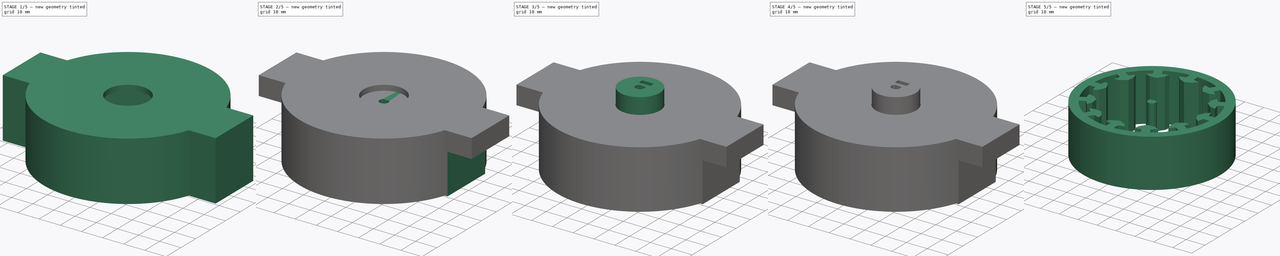
[diagram: build sequence overview — one tinted view per stage of 5, left to right]
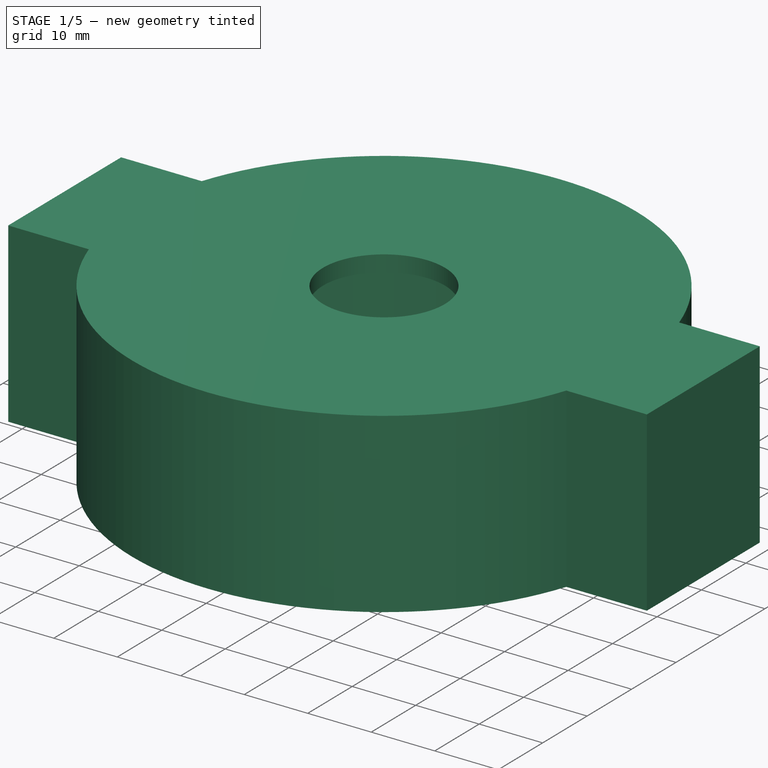
[diagram: stage 1 of 5 — iso view after this stage's code; geometry added in this stage tinted green]
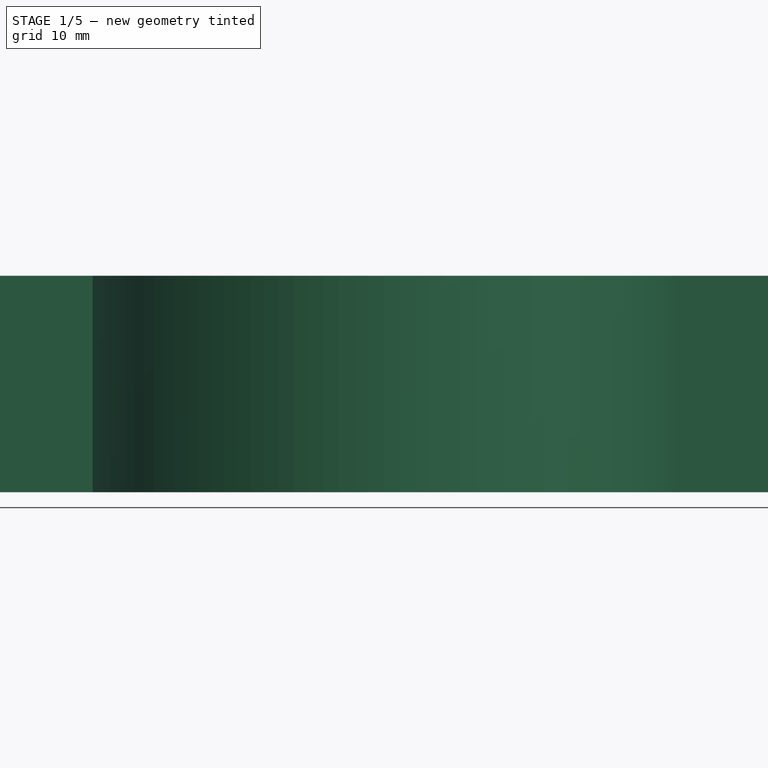
[diagram: stage 1 of 5 — front view after this stage's code; geometry added in this stage tinted green]
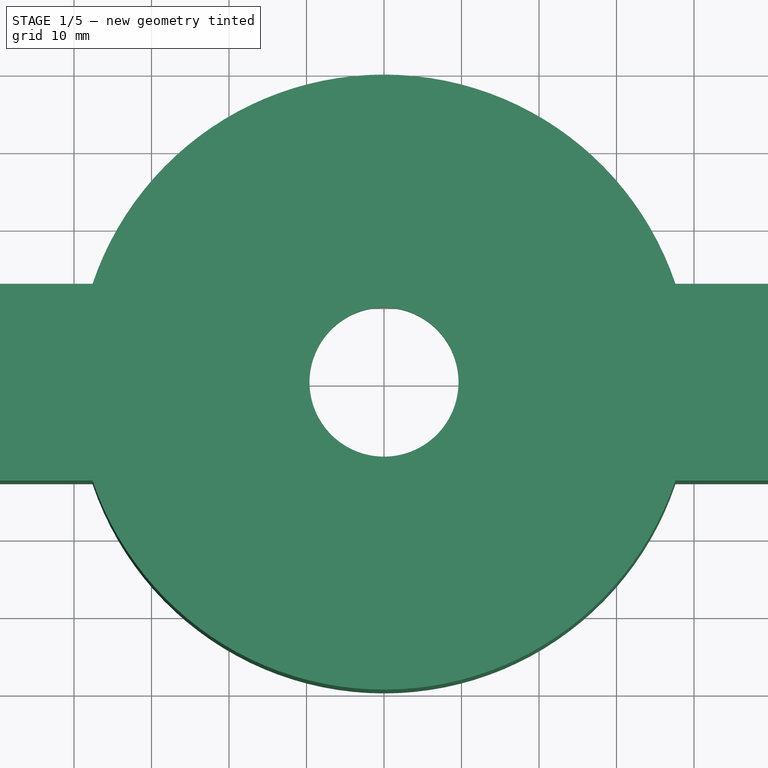
[diagram: stage 1 of 5 — top view after this stage's code; geometry added in this stage tinted green]
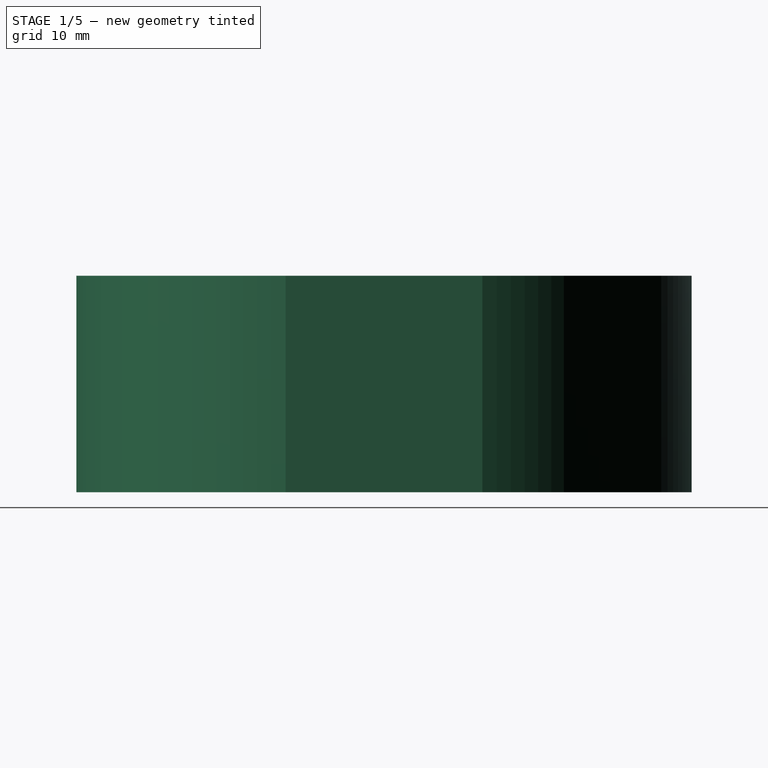
[diagram: stage 1 of 5 — right view after this stage's code; geometry added in this stage tinted green]
FCSTD DOCUMENT  (FreeCAD 2024.2R37191 (Git))
Label: wheel_hub_casting
License: All rights reserved
LicenseURL: http://en.wikipedia.org/wiki/All_rights_reserved
objects: Sketcher::SketchObject×10, PartDesign::Pocket×6, PartDesign::Pad×4, PartDesign::Body×2, Part::FeaturePython×2, PartDesign::PolarPattern×1, PartDesign::Plane×1, Part::Cylinder×1, Part::MultiFuse×1, Part::Cut×1
note: 39 computed .brp shape members not serialized (recipe doc carries the construction recipe); baked Part::Feature solids carry a one-line shape summary decoded from their .brp

FEATURE [Sketcher::SketchObject] Sketch005
  AttachmentSupport = -> [XY_Plane001]
  FullyConstrained = true
  MapMode = 5
  sketch-geometry (8):
    g0: ArcOfCircle CenterX=0 CenterY=0 CenterZ=0 NormalX=0 NormalY=0 NormalZ=1 AngleXU=0 Radius=39.6875 StartAngle=3.46732 EndAngle=5.95746
    g1: LineSegment StartX=37.6006 StartY=12.7 StartZ=0 EndX=50.3006 EndY=12.7 EndZ=0
    g2: LineSegment StartX=50.3006 StartY=12.7 StartZ=0 EndX=50.3006 EndY=-12.7 EndZ=0
    g3: LineSegment StartX=50.3006 StartY=-12.7 StartZ=0 EndX=37.6006 EndY=-12.7 EndZ=0
    g4: LineSegment StartX=-37.6006 StartY=12.7 StartZ=0 EndX=-50.3006 EndY=12.7 EndZ=0
    g5: LineSegment StartX=-50.3006 StartY=12.7 StartZ=0 EndX=-50.3006 EndY=-12.7 EndZ=0
    g6: LineSegment StartX=-50.3006 StartY=-12.7 StartZ=0 EndX=-37.6006 EndY=-12.7 EndZ=0
    g7: ArcOfCircle CenterX=0 CenterY=0 CenterZ=0 NormalX=0 NormalY=0 NormalZ=1 AngleXU=0 Radius=39.6875 StartAngle=0.325729 EndAngle=2.81586
  constraints (22):
    c: Coincident(g0,g-1)
    c: Diameter(g0) = 79.375
    c: Coincident(g1,g2)
    c: Coincident(g2,g3)
    c: Horizontal(g3)
    c: Horizontal(g1)
    c: Symmetric(g2,g1,g-1)
    c: Distance(g2,g2) = 25.4
    c: DistanceX(g1,g1) = 12.7
    c: Horizontal(g4)
    c: Coincident(g4,g5)
    c: Coincident(g5,g6)
    c: Horizontal(g6)
    c: Equal(g5,g2)
    c: Symmetric(g4,g5,g-1)
    c: Equal(g4,g1)
    c: Coincident(g7,g4)
    c: Coincident(g0,g6)
    c: Equal(g0,g7)
    c: Coincident(g0,g3)
    c: Coincident(g7,g1)
    c: Coincident(g0,g7)
FEATURE [PartDesign::Pad] Pad002  label="outside"
  Direction = (0,0,1)
  Length = 27.94
  Length2 = 10
  Profile = -> Sketch005
  ReferenceAxis = -> Sketch005 [N_Axis]
  Suppressed = false
  Type = 0
FEATURE [Sketcher::SketchObject] Sketch006
  AttachmentSupport = -> [Pad002]
  FullyConstrained = true
  MapMode = 5
  Placement = pos=(0,0,0) rot=(1,0,0;3.14159rad)
  sketch-geometry (1):
    g0: Circle CenterX=0 CenterY=0 CenterZ=0 NormalX=0 NormalY=0 NormalZ=1 AngleXU=0 Radius=36.195
  constraints (2):
    c: Coincident(g0,g-1)
    c: Diameter(g0) = 72.39
FEATURE [PartDesign::Pocket] Pocket003  label="inner-pocket"
  BaseFeature = -> Pad002
  Direction = (0,0,1)
  Length = 25.4
  Length2 = 5
  Profile = -> Sketch006
  ReferenceAxis = -> Sketch006 [N_Axis]
  Suppressed = false
  Type = 0
FEATURE [Sketcher::SketchObject] Sketch007
  AttachmentSupport = -> [Pocket003]
  FullyConstrained = true
  MapMode = 5
  Placement = pos=(0,0,25.4) rot=(1,0,0;3.14159rad)
  sketch-geometry (1):
    g0: Circle CenterX=0 CenterY=0 CenterZ=0 NormalX=0 NormalY=0 NormalZ=1 AngleXU=0 Radius=9.6139
  constraints (2):
    c: Coincident(g0,g-1)
    c: Diameter(g0) = 19.2278
FEATURE [PartDesign::Pocket] Pocket004  label="hub-pocket"
  BaseFeature = -> Pocket003
  Direction = (0,0,1)
  Length = 5
  Length2 = 5
  Profile = -> Sketch007
  ReferenceAxis = -> Sketch007 [N_Axis]
  Suppressed = false
  Type = 1
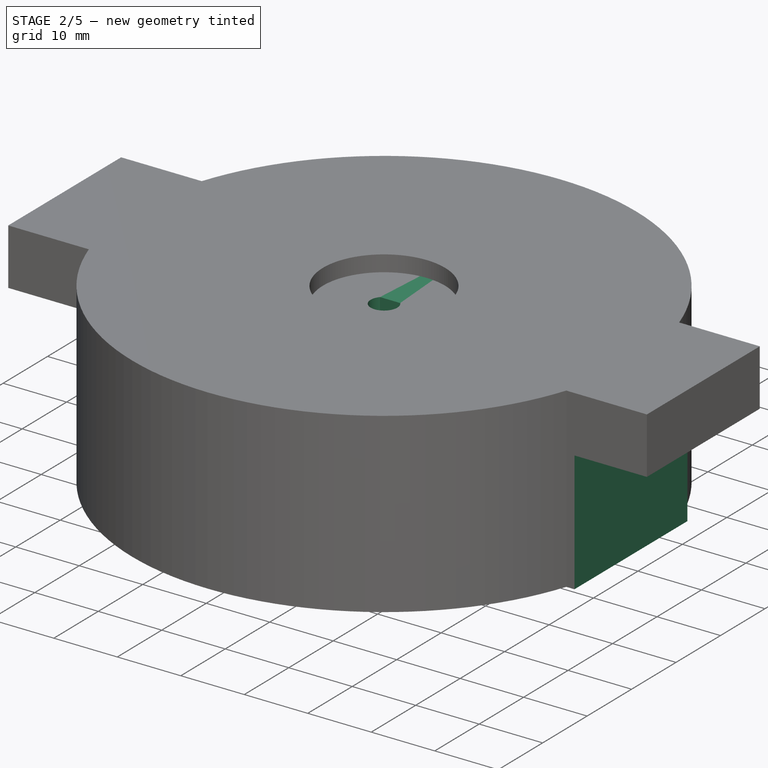
[diagram: stage 2 of 5 — iso view after this stage's code; geometry added in this stage tinted green]
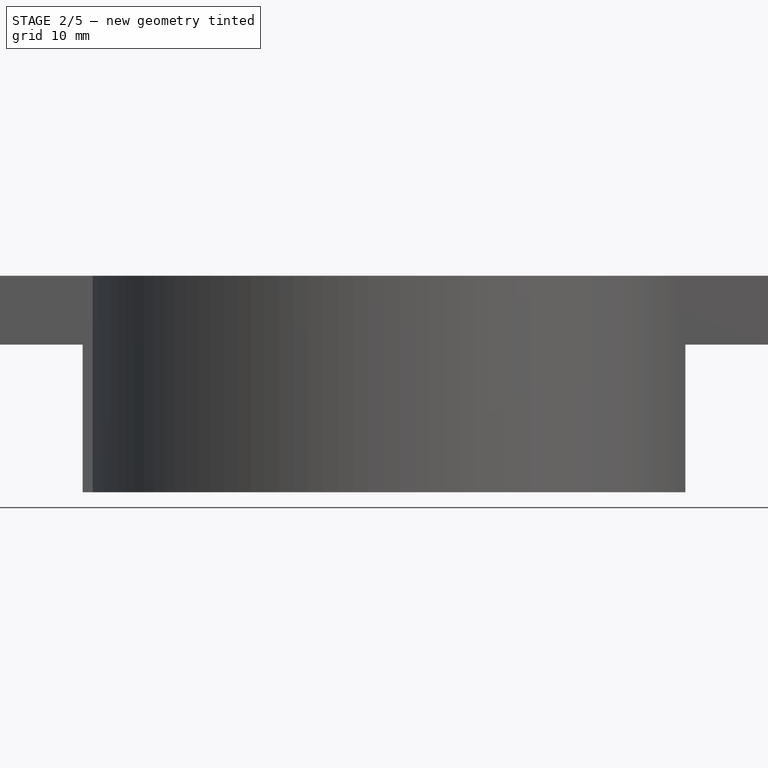
[diagram: stage 2 of 5 — front view after this stage's code; geometry added in this stage tinted green]
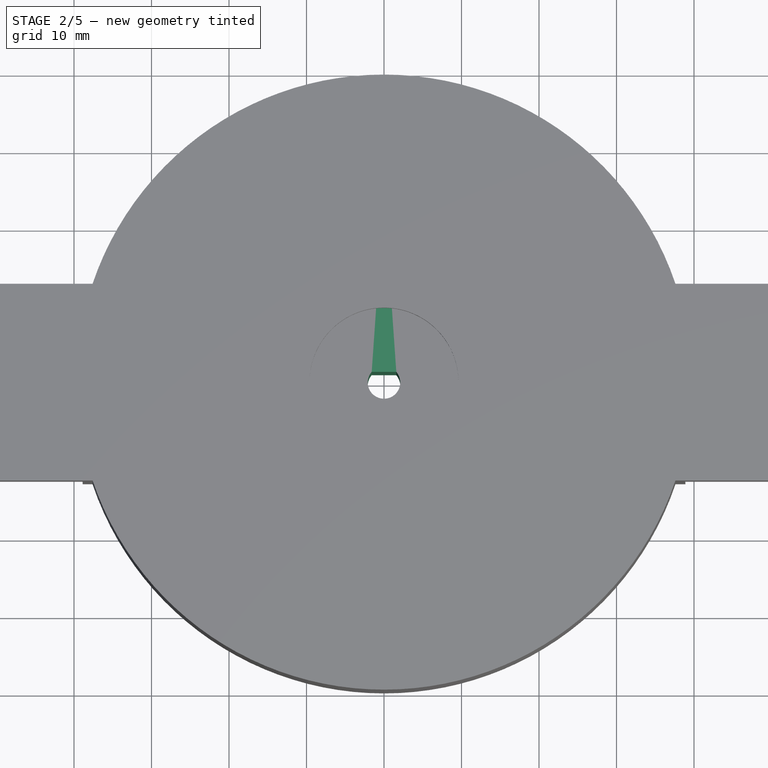
[diagram: stage 2 of 5 — top view after this stage's code; geometry added in this stage tinted green]
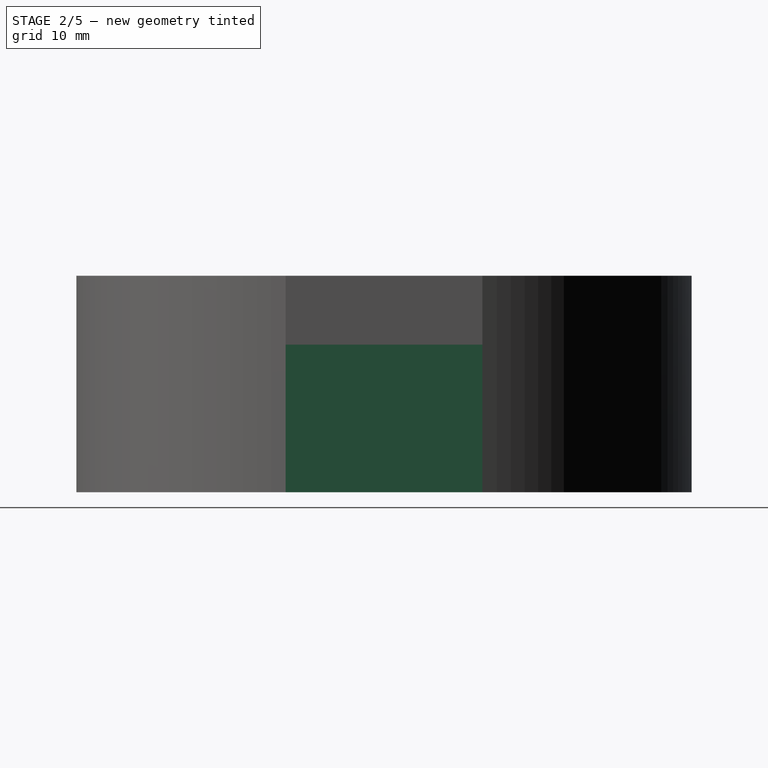
[diagram: stage 2 of 5 — right view after this stage's code; geometry added in this stage tinted green]
FEATURE [Sketcher::SketchObject] Sketch
  AttachmentSupport = -> [XY_Plane]
  FullyConstrained = true
  MapMode = 5
  sketch-geometry (4):
    g0: ArcOfCircle CenterX=0 CenterY=0 CenterZ=0 NormalX=0 NormalY=0 NormalZ=1 AngleXU=0 Radius=2.0955 StartAngle=2.43039 EndAngle=6.99439
    g1: LineSegment StartX=-1.5875 StartY=1.36783 StartZ=0 EndX=1.5875 EndY=1.36783 EndZ=0
    g2: Circle CenterX=0 CenterY=0 CenterZ=0 NormalX=0 NormalY=0 NormalZ=1 AngleXU=0 Radius=31.75
    g3: Circle CenterX=0 CenterY=0 CenterZ=0 NormalX=0 NormalY=0 NormalZ=1 AngleXU=0 Radius=38.1
  constraints (10):
    c: Coincident(g0,g-1)
    c: Horizontal(g1)
    c: Coincident(g0,g1)
    c: Coincident(g0,g1)
    c: Coincident(g2,g0)
    c: Diameter(g2) = 63.5
    c: Coincident(g3,g0)
    c: Diameter(g3) = 76.2
    c: DistanceX(g1,g1) = 3.175
    c: Diameter(g0) = 4.191
FEATURE [PartDesign::Pad] Pad
  Direction = (0,0,1)
  Length = 25.4
  Length2 = 10
  Profile = -> Sketch
  ReferenceAxis = -> Sketch [N_Axis]
  Suppressed = false
  Type = 0
FEATURE [Sketcher::SketchObject] Sketch001
  AttachmentSupport = -> [Pad]
  FullyConstrained = false
  MapMode = 5
  Placement = pos=(0,0,25.4) rot=(0,0,1;0rad)
  sketch-geometry (9):
    g0: LineSegment StartX=2.03594 StartY=32.8582 StartZ=0 EndX=2.03594 EndY=28.5127 EndZ=0
    g1: LineSegment StartX=2.03594 StartY=28.5127 StartZ=0 EndX=5.1287 EndY=27.768 EndZ=0
    g2: LineSegment StartX=5.1287 StartY=27.768 StartZ=0 EndX=3.33573 EndY=25.6223 EndZ=0
    g3: LineSegment StartX=3.33573 StartY=25.6223 StartZ=0 EndX=0 EndY=24.1679 EndZ=0
    g4: LineSegment StartX=0 StartY=24.1679 StartZ=0 EndX=-3.33573 EndY=25.6223 EndZ=0
    g5: LineSegment StartX=-3.33573 StartY=25.6223 StartZ=0 EndX=-5.1287 EndY=27.768 EndZ=0
    g6: LineSegment StartX=-5.1287 StartY=27.768 StartZ=0 EndX=-2.03594 EndY=28.5127 EndZ=0
    g7: LineSegment StartX=-2.03594 StartY=28.5127 StartZ=0 EndX=-2.03594 EndY=32.8582 EndZ=0
    g8: LineSegment StartX=2.03594 StartY=32.8582 StartZ=0 EndX=-2.03594 EndY=32.8582 EndZ=0
  constraints (19):
    c: Coincident(g0,g1)
    c: Coincident(g1,g2)
    c: Coincident(g2,g3)
    c: PointOnObject(g3,g-2)
    c: Coincident(g3,g4)
    c: Coincident(g4,g5)
    c: Coincident(g5,g6)
    c: Coincident(g6,g7)
    c: Equal(g7,g0)
    c: Equal(g6,g1)
    c: Equal(g2,g5)
    c: Equal(g4,g3)
    c: Horizontal(g5,g1)
    c: Horizontal(g4,g2)
    c: Coincident(g8,g0)
    c: Coincident(g8,g7)
    c: Horizontal(g8)
    c: Vertical(g0)
    c: Vertical(g7)
FEATURE [PartDesign::Pocket] Pocket
  BaseFeature = -> Pad
  Direction = (0,0,-1)
  Length = 5
  Length2 = 5
  Profile = -> Sketch001
  ReferenceAxis = -> Sketch001 [N_Axis]
  Suppressed = false
  Type = 1
FEATURE [Sketcher::SketchObject] Sketch009
  AttachmentSupport = -> [Pocket004]
  FullyConstrained = false
  MapMode = 5
  Placement = pos=(0,0,0) rot=(1,0,0;3.14159rad)
  sketch-geometry (8):
    g0: LineSegment StartX=38.8937 StartY=14.6889 StartZ=0 EndX=38.8937 EndY=-15.0479 EndZ=0
    g1: LineSegment StartX=38.8937 StartY=-15.0479 StartZ=0 EndX=56.7843 EndY=-15.0479 EndZ=0
    g2: LineSegment StartX=56.7843 StartY=-15.0479 StartZ=0 EndX=56.7843 EndY=14.6889 EndZ=0
    g3: LineSegment StartX=56.7843 StartY=14.6889 StartZ=0 EndX=38.8937 EndY=14.6889 EndZ=0
    g4: LineSegment StartX=-38.8937 StartY=14.6889 StartZ=0 EndX=-57.8787 EndY=14.6889 EndZ=0
    g5: LineSegment StartX=-57.8787 StartY=14.6889 StartZ=0 EndX=-57.8787 EndY=-16.6344 EndZ=0
    g6: LineSegment StartX=-57.8787 StartY=-16.6344 StartZ=0 EndX=-38.8937 EndY=-16.6344 EndZ=0
    g7: LineSegment StartX=-38.8937 StartY=-16.6344 StartZ=0 EndX=-38.8937 EndY=14.6889 EndZ=0
  constraints (18):
    c: Coincident(g0,g1)
    c: Coincident(g1,g2)
    c: Coincident(g2,g3)
    c: Coincident(g3,g0)
    c: Vertical(g0)
    c: Vertical(g2)
    c: Horizontal(g1)
    c: Horizontal(g3)
    c: Coincident(g4,g5)
    c: Coincident(g5,g6)
    c: Coincident(g6,g7)
    c: Coincident(g7,g4)
    c: Horizontal(g4)
    c: Horizontal(g6)
    c: Vertical(g5)
    c: Vertical(g7)
    c: DistanceX(g4,g0) = 77.7875
    c: Symmetric(g0,g4,g-2)
FEATURE [PartDesign::Pocket] Pocket005
  BaseFeature = -> Pocket004
  Direction = (0,0,1)
  Length = 19.05
  Length2 = 5
  Profile = -> Sketch009
  ReferenceAxis = -> Sketch009 [N_Axis]
  Refine = true
  Suppressed = false
  Type = 0
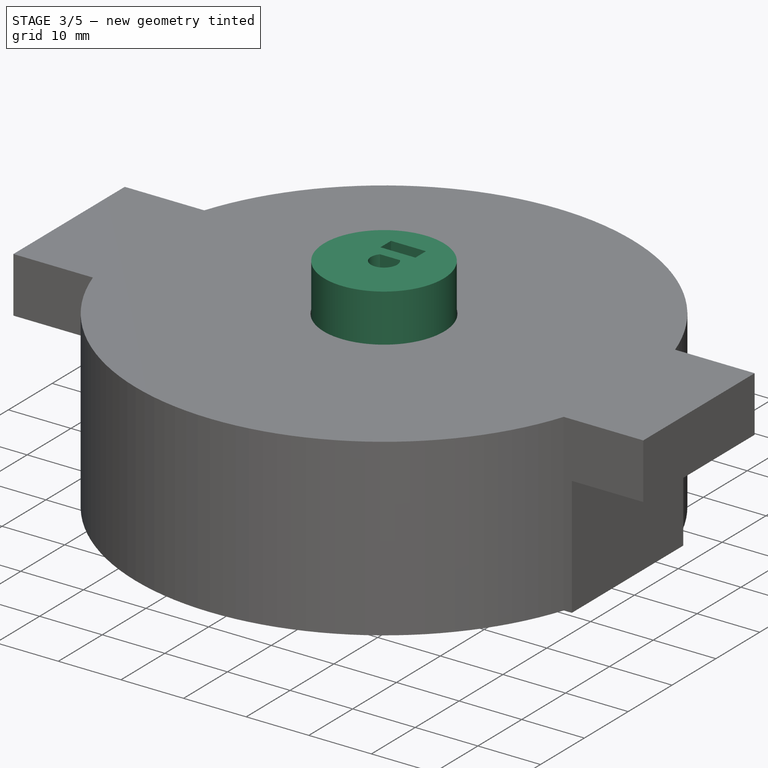
[diagram: stage 3 of 5 — iso view after this stage's code; geometry added in this stage tinted green]
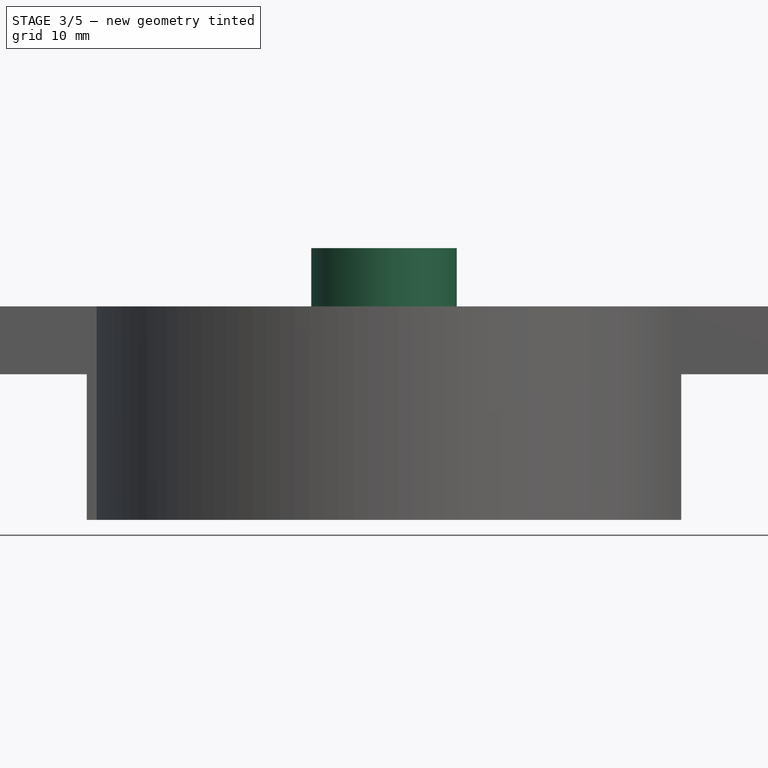
[diagram: stage 3 of 5 — front view after this stage's code; geometry added in this stage tinted green]
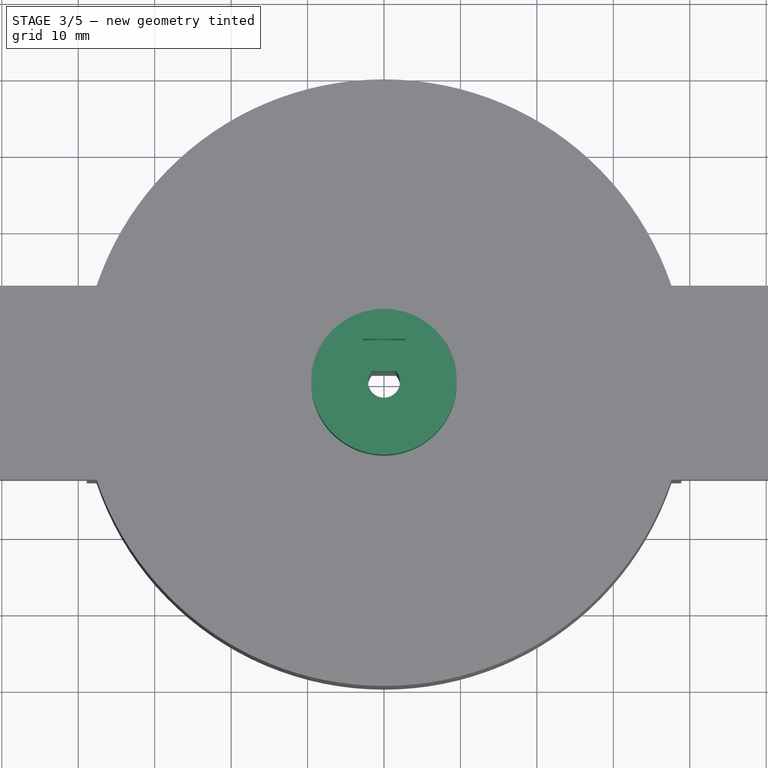
[diagram: stage 3 of 5 — top view after this stage's code; geometry added in this stage tinted green]
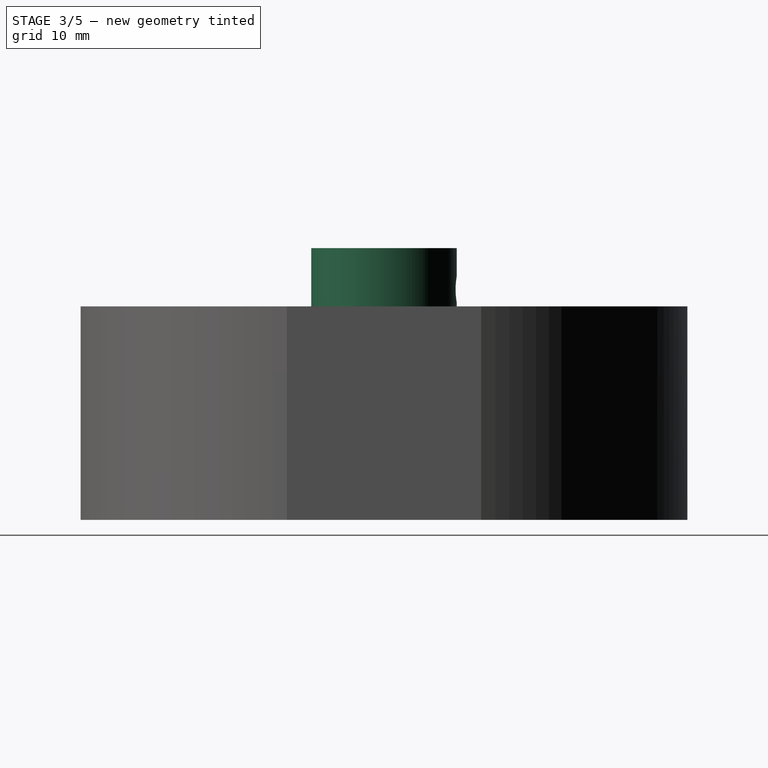
[diagram: stage 3 of 5 — right view after this stage's code; geometry added in this stage tinted green]
FEATURE [PartDesign::PolarPattern] PolarPattern
  Angle = 360
  Axis = -> Sketch001 [N_Axis]
  BaseFeature = -> Pocket
  Mode = 0
  Occurrences = 12
  Offset = 120
  Originals = -> [Pocket]
  Suppressed = false
FEATURE [Sketcher::SketchObject] Sketch002
  AttachmentSupport = -> [PolarPattern]
  ExternalGeometry = -> [PolarPattern]
  FullyConstrained = true
  MapMode = 5
  Placement = pos=(0,0,25.4) rot=(0,0,1;0rad)
  sketch-geometry (3):
    g0: Circle CenterX=0 CenterY=0 CenterZ=0 NormalX=0 NormalY=0 NormalZ=1 AngleXU=0 Radius=9.525
    g1: LineSegment StartX=-1.5875 StartY=1.36783 StartZ=0 EndX=1.5875 EndY=1.36783 EndZ=0
    g2: ArcOfCircle CenterX=0 CenterY=0 CenterZ=0 NormalX=0 NormalY=0 NormalZ=1 AngleXU=0 Radius=2.0955 StartAngle=2.43039 EndAngle=6.99439
  constraints (7):
    c: Coincident(g0,g-1)
    c: Coincident(g1,g-4)
    c: Coincident(g1,g-4)
    c: Coincident(g2,g0)
    c: Coincident(g2,g1)
    c: Coincident(g2,g1)
    c: Diameter(g0) = 19.05
FEATURE [PartDesign::Pad] Pad001  label="hub"
  BaseFeature = -> PolarPattern
  Direction = (0,0,1)
  Length = 10.16
  Length2 = 10
  Profile = -> Sketch002
  ReferenceAxis = -> Sketch002 [N_Axis]
  Suppressed = false
  Type = 0
FEATURE [PartDesign::Plane] DatumPlane
  AttachmentSupport = -> [Pad001]
  Length = 75.7591
  MapMode = 5
  Placement = pos=(0,1.36783,0) rot=(1,0,0;1.5708rad)
  ResizeMode = 0
  Width = 72.9497
FEATURE [Sketcher::SketchObject] Sketch003
  AttachmentSupport = -> [DatumPlane]
  FullyConstrained = true
  MapMode = 5
  Placement = pos=(0,1.36783,0) rot=(1,0,0;1.5708rad)
  sketch-geometry (1):
    g0: Circle CenterX=0 CenterY=30.1625 CenterZ=0 NormalX=0 NormalY=0 NormalZ=1 AngleXU=0 Radius=1.7399
  constraints (3):
    c: PointOnObject(g0,g-2)
    c: DistanceY(g-1,g0) = 30.1625
    c: Diameter(g0) = 3.4798
FEATURE [PartDesign::Pocket] Pocket001  label="setscrew-hole"
  BaseFeature = -> Pad001
  Direction = (0,1,-2e-16)
  Length = 11.43
  Length2 = 5
  Profile = -> Sketch003
  ReferenceAxis = -> Sketch003 [N_Axis]
  Suppressed = false
  Type = 0
FEATURE [Sketcher::SketchObject] Sketch004
  AttachmentSupport = -> [Pocket001]
  FullyConstrained = true
  MapMode = 5
  Placement = pos=(0,0,35.56) rot=(0,0,1;0rad)
  sketch-geometry (4):
    g0: LineSegment StartX=-2.794 StartY=5.588 StartZ=0 EndX=2.794 EndY=5.588 EndZ=0
    g1: LineSegment StartX=2.794 StartY=5.588 StartZ=0 EndX=2.794 EndY=3.175 EndZ=0
    g2: LineSegment StartX=2.794 StartY=3.175 StartZ=0 EndX=-2.794 EndY=3.175 EndZ=0
    g3: LineSegment StartX=-2.794 StartY=3.175 StartZ=0 EndX=-2.794 EndY=5.588 EndZ=0
  constraints (11):
    c: Coincident(g0,g1)
    c: Coincident(g1,g2)
    c: Coincident(g2,g3)
    c: Coincident(g3,g0)
    c: Horizontal(g2)
    c: Vertical(g1)
    c: Vertical(g3)
    c: DistanceX(g0,g0) = 5.588
    c: DistanceY(g1,g1) = 2.413
    c: Symmetric(g0,g0,g-2)
    c: DistanceY(g-1,g1) = 3.175
FEATURE [PartDesign::Pocket] Pocket002  label="recess-nut"
  BaseFeature = -> Pocket001
  Direction = (0,0,-1)
  Length = 9.525
  Length2 = 5
  Profile = -> Sketch004
  ReferenceAxis = -> Sketch004 [N_Axis]
  Suppressed = false
  Type = 0
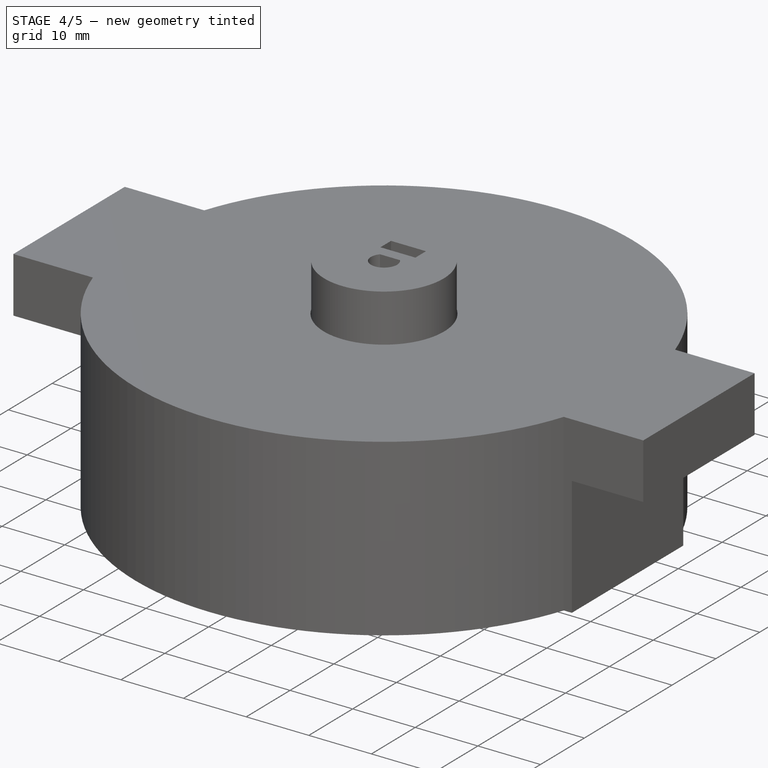
[diagram: stage 4 of 5 — iso view after this stage's code; geometry added in this stage tinted green]
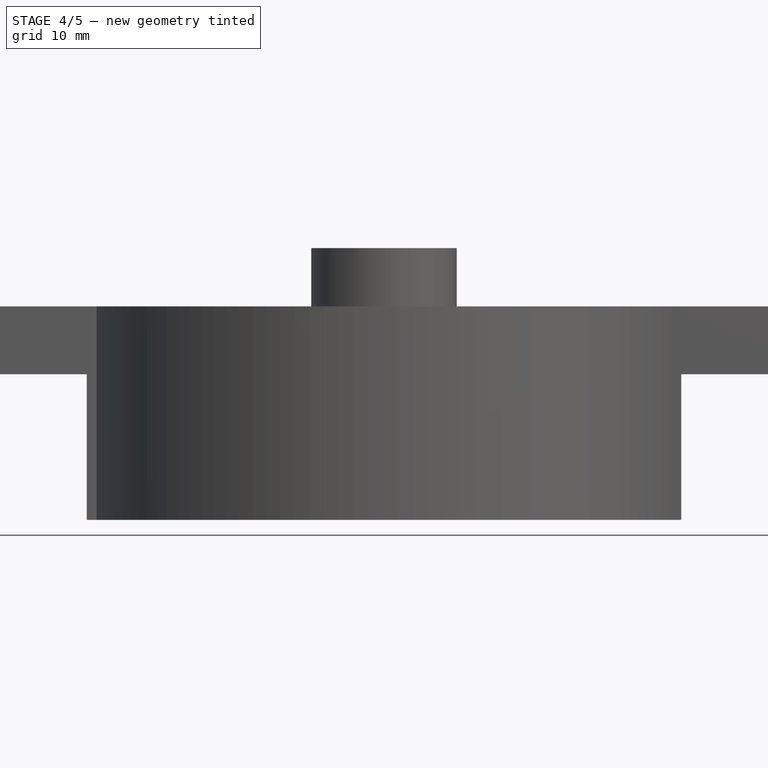
[diagram: stage 4 of 5 — front view after this stage's code; geometry added in this stage tinted green]
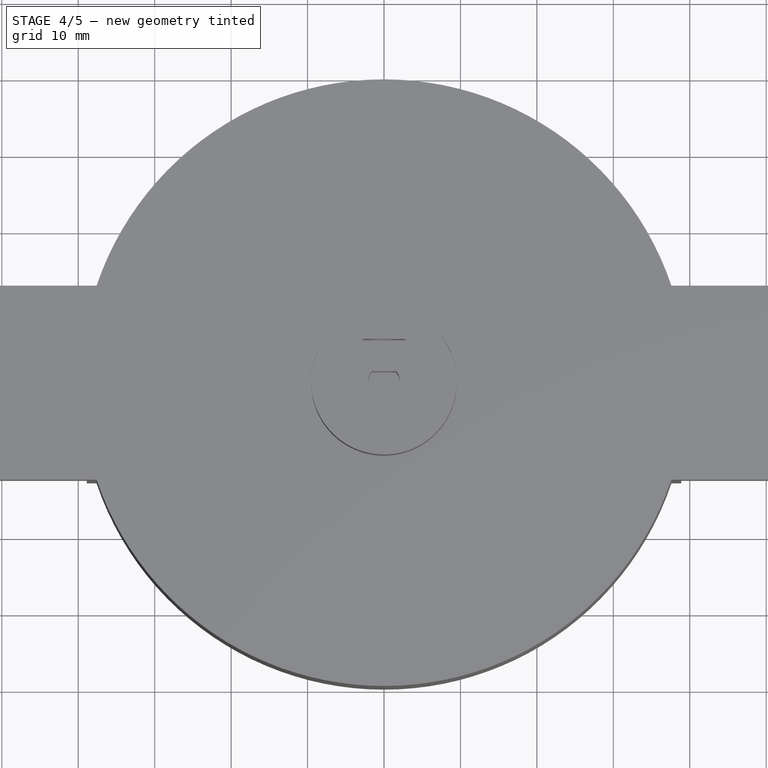
[diagram: stage 4 of 5 — top view after this stage's code; geometry added in this stage tinted green]
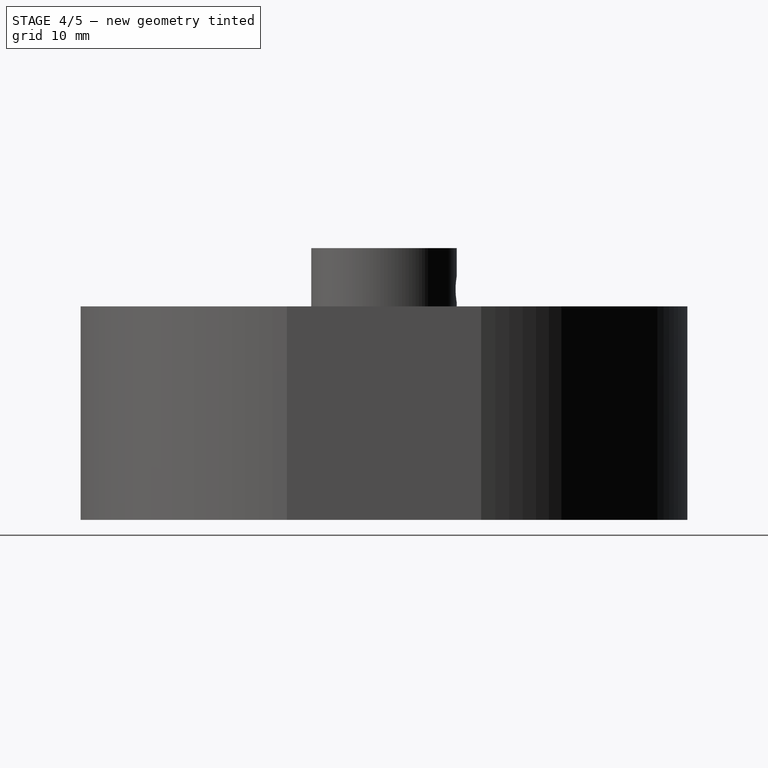
[diagram: stage 4 of 5 — right view after this stage's code; geometry added in this stage tinted green]
FEATURE [Part::Cylinder] Cylinder
  Angle = 360
  AttacherType = Attacher::AttachEngine3D
  FirstAngle = 0
  Height = 25.4
  Radius = 38.1
  SecondAngle = 0
FEATURE [Sketcher::SketchObject] Sketch008
  AttachmentSupport = -> [Pocket002]
  FullyConstrained = false
  MapMode = 5
  Placement = pos=(0,0,0) rot=(1,0,0;3.14159rad)
  sketch-geometry (1):
    g0: Circle CenterX=0 CenterY=0 CenterZ=0 NormalX=0 NormalY=0 NormalZ=1 AngleXU=0 Radius=4.70672
  constraints (1):
    c: Coincident(g0,g-1)
FEATURE [PartDesign::Pad] Pad003  label="close-outside"
  BaseFeature = -> Pocket002
  Direction = (0,0,-1)
  Length = 5.08
  Length2 = 10
  Profile = -> Sketch008
  ReferenceAxis = -> Sketch008 [N_Axis]
  Reversed = true
  Suppressed = false
  Type = 0
FEATURE [PartDesign::Body] Body001  label="mold"
  Group = -> [Sketch005,Pad002,Sketch006,Pocket003,Sketch007,Pocket004,Sketch009,Pocket005]
  Origin = -> Origin001
  Tip = -> Pocket005
FEATURE [Part::FeaturePython] Clone001  label="mold001"  # Draft clone (typed FeaturePython)
  AttacherType = Attacher::AttachEngine3D
  Fuse = false
  Objects = -> [Body001]
  Scale = (1,1,1)
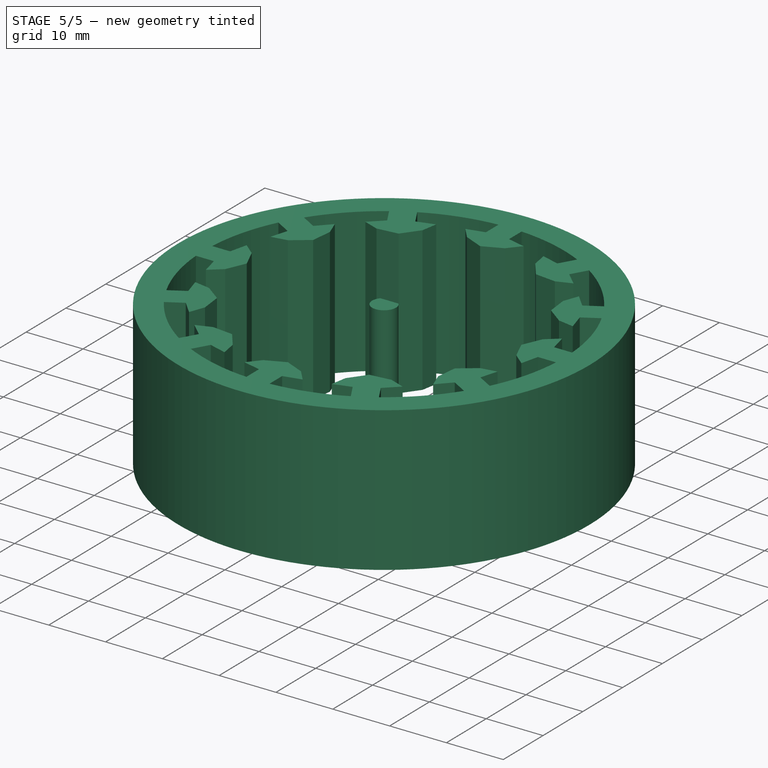
[diagram: stage 5 of 5 — iso view after this stage's code; geometry added in this stage tinted green]
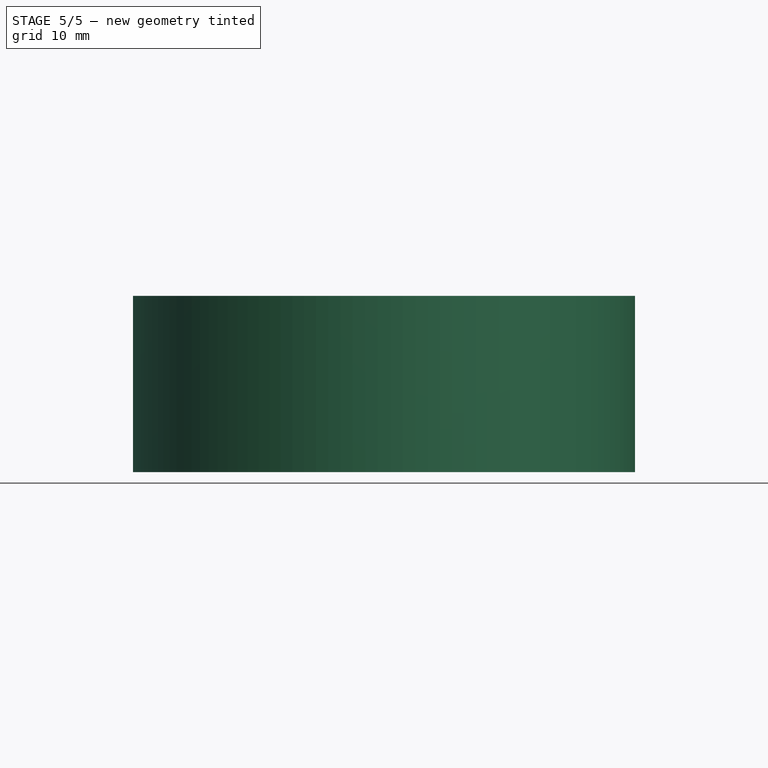
[diagram: stage 5 of 5 — front view after this stage's code; geometry added in this stage tinted green]
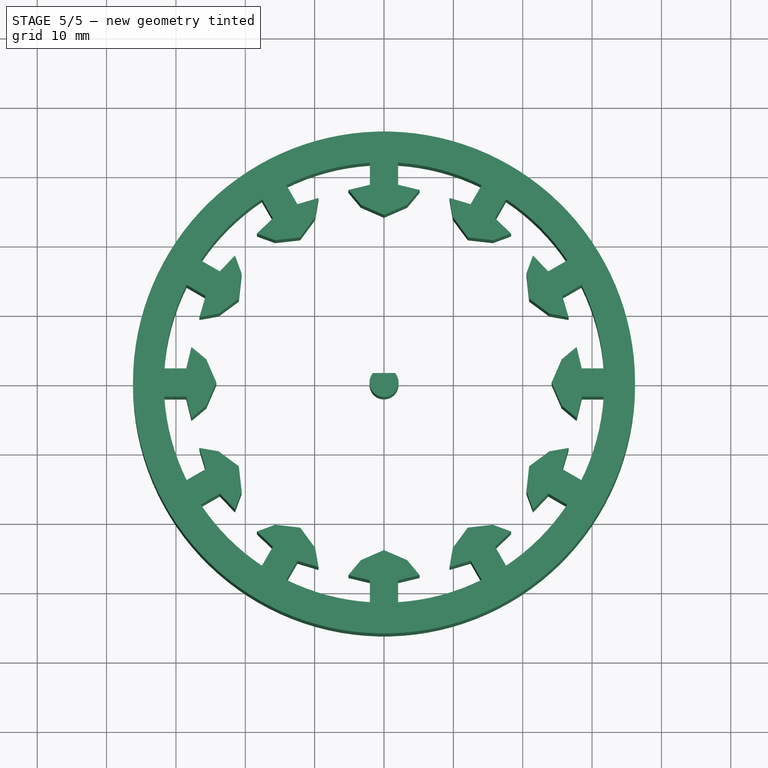
[diagram: stage 5 of 5 — top view after this stage's code; geometry added in this stage tinted green]
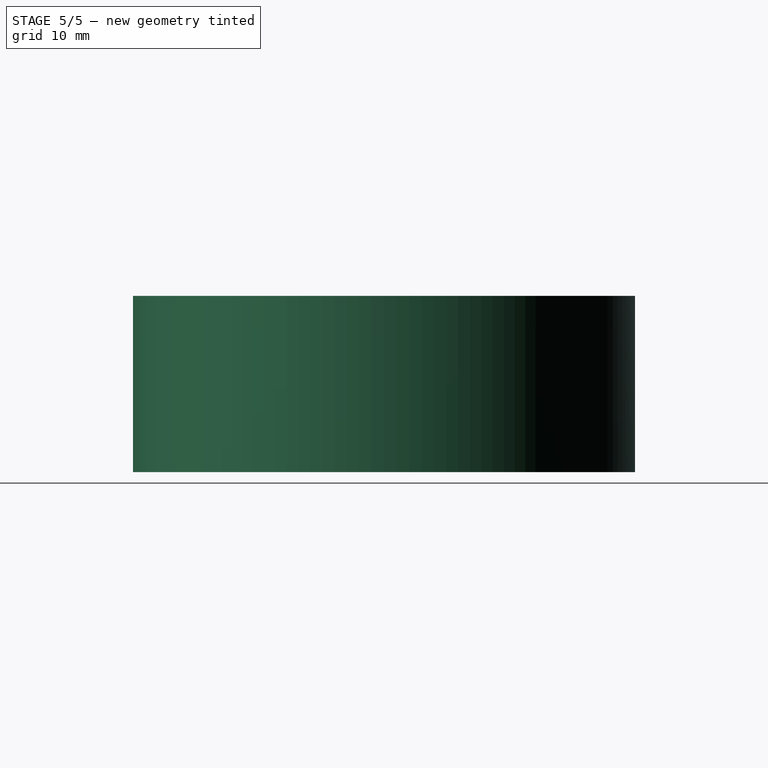
[diagram: stage 5 of 5 — right view after this stage's code; geometry added in this stage tinted green]
FEATURE [PartDesign::Body] Body  label="wheel"
  Group = -> [Sketch,Pad,Sketch001,Pocket,PolarPattern,Sketch002,Pad001,DatumPlane,Sketch003,Pocket001,Sketch004,Pocket002,Sketch008,Pad003]
  Origin = -> Origin
  Tip = -> Pad003
FEATURE [Part::FeaturePython] Clone  label="wheel001"  # Draft clone (typed FeaturePython)
  AttacherType = Attacher::AttachEngine3D
  Fuse = false
  Objects = -> [Body]
  Scale = (1,1,1)
FEATURE [Part::MultiFuse] Fusion
  Shapes = -> [Clone001,Clone]
FEATURE [Part::Cut] Cut
  Base = -> Cylinder
  Tool = -> Fusion
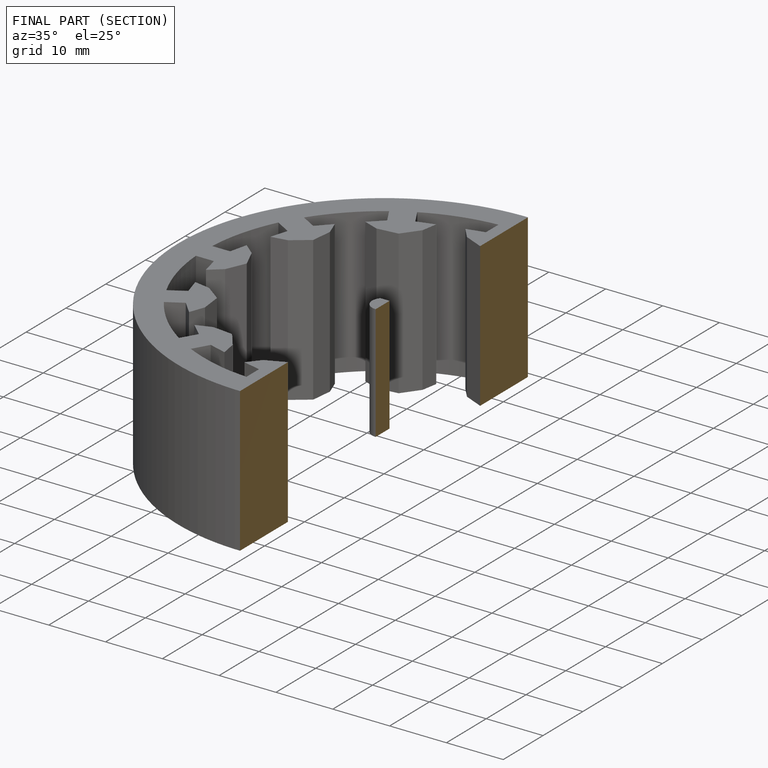
[diagram: finished part — half-section view (interior)]
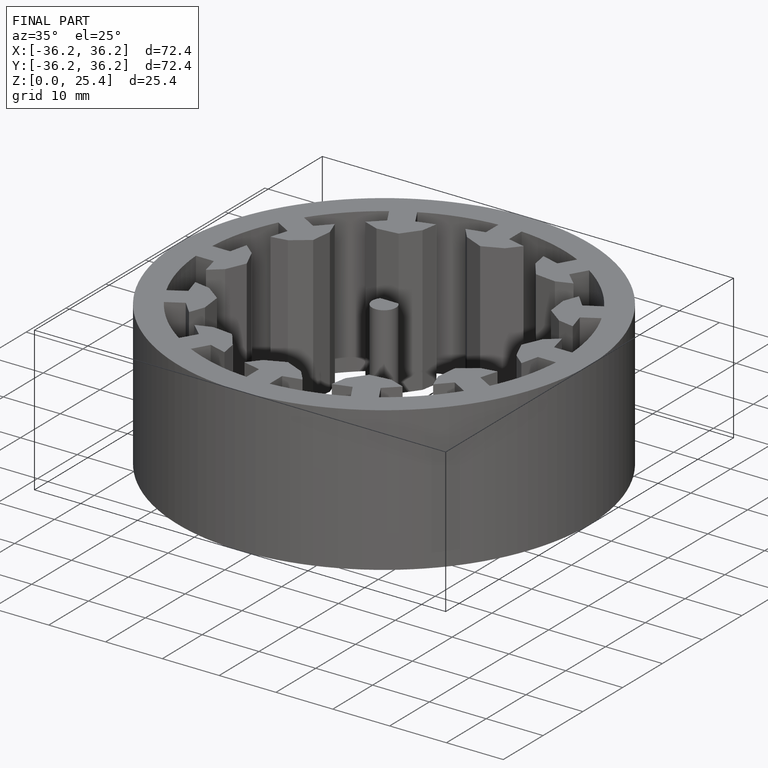
[diagram: finished part — iso view with bounding-box wireframe]
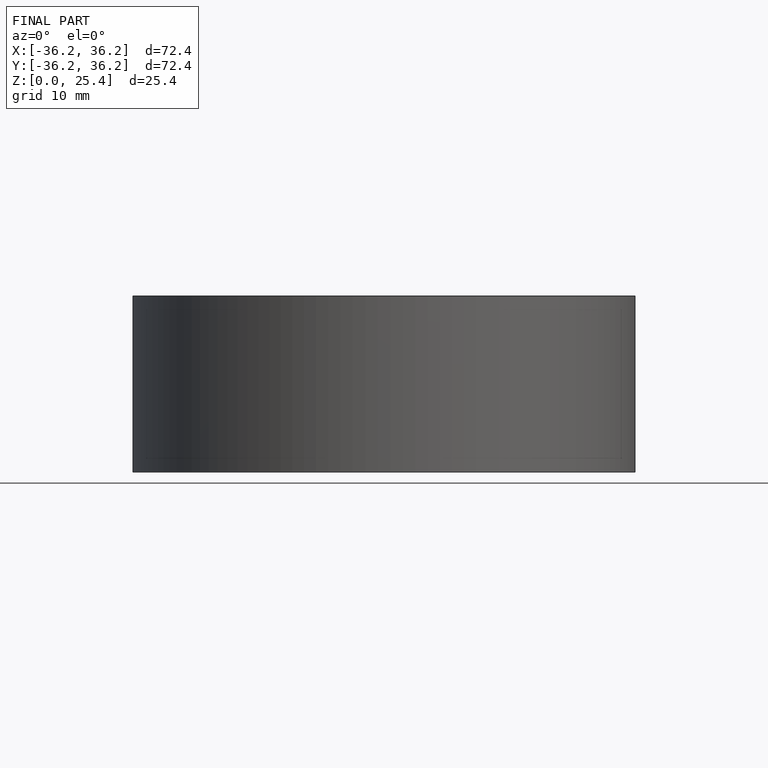
[diagram: finished part — front view with bounding-box wireframe]
